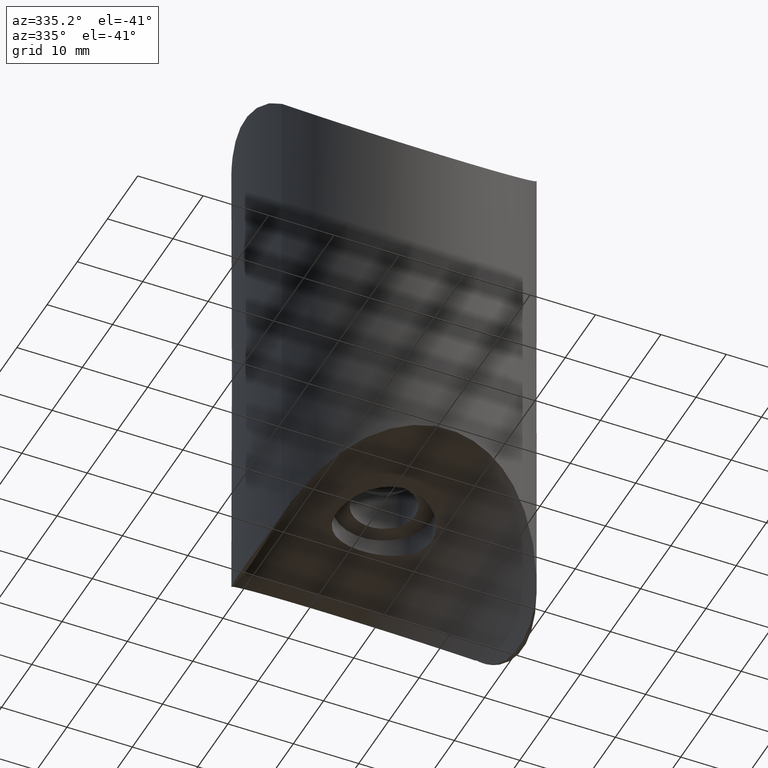
[diagram: clean part render]
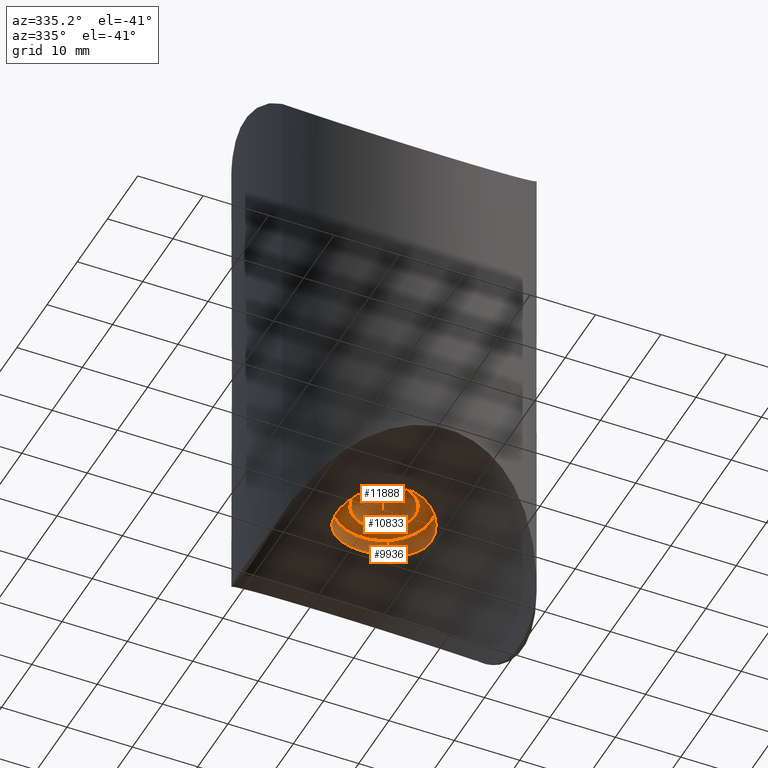
[diagram: same view with one multi-face feature highlighted, each face labeled with its STEP entity id]
A machine part, auxiliary view. The highlighted faces form ONE feature: a stepped (counterbored) hole: 2 coaxial cylindrical walls of radii 4.75 -> 7.25 mm joined by 1 annular planar shoulder face(s). The faces share edges in the B-rep.
Their STEP definitions:
[1] entity #9936 (Cylinder):
#9 = CARTESIAN_POINT ( 'NONE',  ( 6.509851379537828109, 3.226429652034594753, 26.02330857311088153 ) ) ;
#55 = CARTESIAN_POINT ( 'NONE',  ( -6.876303559639469931, 2.345931738775577813, 26.14524508502736211 ) ) ;
#89 = CARTESIAN_POINT ( 'NONE',  ( 4.432367805953239426, 5.756904445230259348, 25.46463419026534325 ) ) ;
#141 = CARTESIAN_POINT ( 'NONE',  ( -7.190882583206959389, -0.9543925950206311182, 26.25678463686046626 ) ) ;
#189 = CARTESIAN_POINT ( 'NONE',  ( 3.005515933870009704, 6.601917067209921441, 25.21297113585722727 ) ) ;
#525 = VERTEX_POINT ( 'NONE', #12753 ) ;
#850 = CARTESIAN_POINT ( 'NONE',  ( 5.750198254161116296, -4.421941696019360712, 25.79413230358338893 ) ) ;
#889 = CARTESIAN_POINT ( 'NONE',  ( -2.343731365980569858, -6.877354188263146817, 25.12524757484231941 ) ) ;
#1028 = CARTESIAN_POINT ( 'NONE',  ( 3.224516823743711846, -6.510582053894632182, 25.24205241274534828 ) ) ;
#1068 = CARTESIAN_POINT ( 'NONE',  ( -3.007011386368386940, 6.601309398131058437, 25.21316529528060357 ) ) ;
#1115 = CARTESIAN_POINT ( 'NONE',  ( -0.2388465963188698415, 7.250001156584477968, 24.99999960446973901 ) ) ;
#1165 = CARTESIAN_POINT ( 'NONE',  ( -7.261670843123230412, -0.002871798025563713531, 26.28247452916088278 ) ) ;
#1210 = CARTESIAN_POINT ( 'NONE',  ( -7.191716234747705272, 0.9480330731187185389, 26.25708554441493803 ) ) ;
#1248 = CARTESIAN_POINT ( 'NONE',  ( 6.783783114446726437, 2.568883994451123254, 26.11444431597557170 ) ) ;
#1957 = CARTESIAN_POINT ( 'NONE',  ( -3.226555368670454449, -6.510024408526104089, 25.24224232055169992 ) ) ;
#1999 = CYLINDRICAL_SURFACE ( 'NONE', #12590, 7.250000000000000000 ) ;
#2093 = CARTESIAN_POINT ( 'NONE',  ( 0.4818734902393436159, -7.249680505290640120, 25.00010926114083887 ) ) ;
#2152 = CARTESIAN_POINT ( 'NONE',  ( -6.285011176621781104, 3.644561984070159077, 25.95121334313757799 ) ) ;
#2201 = CARTESIAN_POINT ( 'NONE',  ( 7.062527813327395876, 1.655145732846079243, 26.21092440739820262 ) ) ;
#2288 = CARTESIAN_POINT ( 'NONE',  ( -6.511739008375249327, -3.222246078574271699, 26.02392867496302031 ) ) ;
#2337 = CARTESIAN_POINT ( 'NONE',  ( -5.759433065516857297, -4.428706587053812704, 25.79549507831384858 ) ) ;
#2761 = CIRCLE ( 'NONE', #3832, 7.250000000000000000 ) ;
#2997 = CARTESIAN_POINT ( 'NONE',  ( 3.640337174190682923, -6.287877510260845071, 25.31099678021422505 ) ) ;
#3038 = CARTESIAN_POINT ( 'NONE',  ( -3.644503179383127733, -6.285018690129441588, 25.31181856569190458 ) ) ;
#3076 = CARTESIAN_POINT ( 'NONE',  ( 7.062438076636141204, -1.655554104716786767, 26.21089259011953132 ) ) ;
#3222 = CARTESIAN_POINT ( 'NONE',  ( -5.462926514089710750, 4.789915247397677156, 25.71304050749420966 ) ) ;
#3314 = CARTESIAN_POINT ( 'NONE',  ( 7.004554471377879565, 1.885653695091795479, 26.19046125019285753 ) ) ;
#3360 = CARTESIAN_POINT ( 'NONE',  ( -3.223449022790398910, 6.498295588379965793, 25.24543072876354799 ) ) ;
#3403 = CARTESIAN_POINT ( 'NONE',  ( 3.841002185440898664, 6.153497826531583392, 25.34989155617804713 ) ) ;
#3832 = AXIS2_PLACEMENT_3D ( 'NONE', #13554, #8377, #4954 ) ;
#4077 = CARTESIAN_POINT ( 'NONE',  ( 7.202236549575331104, -0.9570018828714262904, 26.26065258830743687 ) ) ;
#4308 = CARTESIAN_POINT ( 'NONE',  ( 5.459349115452888590, 4.793624281395480580, 25.71213156078946938 ) ) ;
#4327 = EDGE_LOOP ( 'NONE', ( #9248 ) ) ;
#4363 = CARTESIAN_POINT ( 'NONE',  ( -3.841864781931664030, 6.152863332618352388, 25.35007052466577093 ) ) ;
#4408 = CARTESIAN_POINT ( 'NONE',  ( 6.287238633193511284, 3.640728091337449346, 25.95190742098747805 ) ) ;
#4446 = CARTESIAN_POINT ( 'NONE',  ( -0.4800756467866428845, 7.238085387647865687, 25.00408349533747554 ) ) ;
#4498 = CARTESIAN_POINT ( 'NONE',  ( -7.155043788601265220, -1.193796978232343653, 26.24385170633036068 ) ) ;
#4954 = DIRECTION ( 'NONE',  ( 1.000000000000000000, 0.000000000000000000, 0.000000000000000000 ) ) ;
#5175 = EDGE_CURVE ( 'NONE', #10905, #10905, #2761, .T. ) ;
#5247 = CARTESIAN_POINT ( 'NONE',  ( 4.431842194841512317, -5.757450224349411450, 25.46449216879322108 ) ) ;
#5336 = CARTESIAN_POINT ( 'NONE',  ( -4.785265091308689378, -5.451572531739584448, 25.54627725870549426 ) ) ;
#5390 = CARTESIAN_POINT ( 'NONE',  ( -3.640238106544568364, 6.274323524026134358, 25.31380208191935921 ) ) ;
#5431 = CARTESIAN_POINT ( 'NONE',  ( -7.238519723795993066, 0.4726323275835440096, 26.27402570532289161 ) ) ;
#5472 = CARTESIAN_POINT ( 'NONE',  ( -4.420518731307505611, 5.751258890511357968, 25.46515579548934483 ) ) ;
#5526 = CARTESIAN_POINT ( 'NONE',  ( 0.9512028090831811111, 7.203228716476409055, 25.01613312446788839 ) ) ;
#6043 = FACE_OUTER_BOUND ( 'NONE', #7381, .T. ) ;
#6227 = CARTESIAN_POINT ( 'NONE',  ( -0.4722111775666714140, -7.250316275388796861, 24.99989183980555651 ) ) ;
#6406 = CARTESIAN_POINT ( 'NONE',  ( 5.763426133025938647, 4.423481646274604273, 25.79662915280572832 ) ) ;
#6449 = CARTESIAN_POINT ( 'NONE',  ( 3.636215122921624410, 6.276662310834697500, 25.31309908041830781 ) ) ;
#6494 = CARTESIAN_POINT ( 'NONE',  ( -5.760815841621084843, 4.426872302757072219, 25.79588944834109299 ) ) ;
#6541 = CARTESIAN_POINT ( 'NONE',  ( -7.013546906630645950, -1.897859625115776661, 26.19349642912559872 ) ) ;
#6582 = CARTESIAN_POINT ( 'NONE',  ( 2.345654572570471164, 6.864208478661653068, 25.12891732731159067 ) ) ;
#7260 = CARTESIAN_POINT ( 'NONE',  ( 5.450020823086114241, -4.787026358093287470, 25.71191835642623502 ) ) ;
#7304 = CARTESIAN_POINT ( 'NONE',  ( -1.889748769253172256, -7.015536201140634809, 25.07921617399650316 ) ) ;
#7381 = EDGE_LOOP ( 'NONE', ( #10747 ) ) ;
#7396 = CARTESIAN_POINT ( 'NONE',  ( 7.250000000000000888, -0.4829326223636259408, 26.27821544138167908 ) ) ;
#7437 = CARTESIAN_POINT ( 'NONE',  ( 6.509725557862082290, -3.226624134545719613, 26.02326916184702199 ) ) ;
#7479 = CARTESIAN_POINT ( 'NONE',  ( 4.794854175872560909, 5.458268951572289751, 25.54651072145647817 ) ) ;
#7505 = CARTESIAN_POINT ( 'NONE',  ( 0.000000000000000000, 0.000000000000000000, 22.49999999999990408 ) ) ;
#7535 = CARTESIAN_POINT ( 'NONE',  ( 6.865358533641773953, 2.342290632023545260, 26.14227638720970148 ) ) ;
#7620 = CARTESIAN_POINT ( 'NONE',  ( -6.284210845800443757, -3.645984821129516718, 25.95096090228459218 ) ) ;
#7670 = CARTESIAN_POINT ( 'NONE',  ( -4.419892896670904570, -5.751778146353806243, 25.46501574993795813 ) ) ;
#7920 = B_SPLINE_CURVE_WITH_KNOTS ( 'NONE', 3,
 ( #9495, #7396, #4077, #3076, #11625, #8472, #9410, #7437, #12673, #11679, #850, #7260, #8343, #10563, #5247, #2997, #1028, #9450, #12764, #12723, #8521, #11541, #2093, #6227, #13708, #7304, #889, #1957, #3038, #10519, #7670, #5336, #10791, #8610, #2337, #7620, #2288, #12946, #6541, #4498, #141, #11772, #1165, #5431, #1210, #8702, #9635, #55, #8647, #2152, #6494, #3222, #10883, #9778, #5472, #11916, #4363, #5390, #3360, #1068, #10750, #12859, #10707, #10837, #4446, #1115, #12990, #5526, #8569, #12910, #6582, #12804, #189, #9817, #6449, #3403, #89, #7479, #4308, #6406, #4408, #9, #1248, #7535, #3314, #2201, #8748, #11815, #9737 ),
 .UNSPECIFIED., .T., .F.,
 ( 4, 2, 2, 2, 2, 2, 2, 2, 2, 2, 2, 2, 2, 2, 2, 2, 2, 2, 2, 2, 2, 1, 2, 2, 2, 2, 2, 2, 2, 2, 2, 2, 2, 2, 2, 2, 2, 2, 2, 2, 2, 2, 2, 2, 4 ),
 ( 0.000000000000000000, 0.001427308038129308050, 0.002140962057193962834, 0.002854616076258617401, 0.004281924114387923933, 0.004995578133452575030, 0.005709232152517226128, 0.007136540190646524853, 0.008563848228775820109, 0.009277502247840470340, 0.009991156266905118835, 0.01141846430503441756, 0.01284577234316371455, 0.01427308038129301328, 0.01570038841942231200, 0.01641404243848696223, 0.01712769645755160899, 0.01855500449568090598, 0.01998231253381020298, 0.02140962057193950344, 0.02212327459100415020, 0.02283692861006879696, 0.02355058262913345413, 0.02426423664819810436, 0.02569154468632739788, 0.02711885272445669834, 0.02854616076258599533, 0.02925981478165064556, 0.02997346880071529232, 0.03068712281977994255, 0.03140077683884458931, 0.03282808487697389671, 0.03354173889603854347, 0.03425539291510319023, 0.03568270095323249763, 0.03639635497229714439, 0.03711000899136179115, 0.03782366301042644485, 0.03853731702949109161, 0.03996462506762039207, 0.04139193310574969253, 0.04281924114387899299, 0.04353289516294363976, 0.04424654918200828652, 0.04567385722013758698 ),
 .UNSPECIFIED. ) ;
#8343 = CARTESIAN_POINT ( 'NONE',  ( 5.292002883686162562, -4.961068277643217783, 25.67041370422147395 ) ) ;
#8377 = DIRECTION ( 'NONE',  ( 0.000000000000000000, 0.000000000000000000, 1.000000000000000000 ) ) ;
#8472 = CARTESIAN_POINT ( 'NONE',  ( 6.864947048405172225, -2.343528998161398036, 26.14213506629824124 ) ) ;
#8521 = CARTESIAN_POINT ( 'NONE',  ( 1.658086648949342878, -7.061898216450464005, 25.06363438643840169 ) ) ;
#8569 = CARTESIAN_POINT ( 'NONE',  ( 1.654782290350956364, 7.062676068814877972, 25.06337429442401188 ) ) ;
#8610 = CARTESIAN_POINT ( 'NONE',  ( -5.461870639133853622, -4.790913465329488474, 25.71278499240138515 ) ) ;
#8647 = CARTESIAN_POINT ( 'NONE',  ( -6.512538062397744021, 3.220837523552795290, 26.02418295756648448 ) ) ;
#8702 = CARTESIAN_POINT ( 'NONE',  ( -7.156177727786754872, 1.187067269414604054, 26.24425862712013924 ) ) ;
#8748 = CARTESIAN_POINT ( 'NONE',  ( 7.202198424912301888, 0.9571122672483709515, 26.26063926573231200 ) ) ;
#9248 = ORIENTED_EDGE ( 'NONE', *, *, #5175, .F. ) ;
#9410 = CARTESIAN_POINT ( 'NONE',  ( 6.783481717695234003, -2.569661129754936546, 26.11434282070438329 ) ) ;
#9450 = CARTESIAN_POINT ( 'NONE',  ( 2.571139155122240894, -6.782876624395622223, 25.15534480208374646 ) ) ;
#9495 = CARTESIAN_POINT ( 'NONE',  ( 7.250000000000000888, 1.897353801849632760E-16, 26.27821544138167553 ) ) ;
#9635 = CARTESIAN_POINT ( 'NONE',  ( -7.015049260418606103, 1.892516147631730039, 26.19402445453758688 ) ) ;
#9656 = DIRECTION ( 'NONE',  ( 1.000000000000000000, 0.000000000000000000, 0.000000000000000000 ) ) ;
#9737 = CARTESIAN_POINT ( 'NONE',  ( 7.250000000000000888, 1.897353801849632760E-16, 26.27821544138167553 ) ) ;
#9778 = CARTESIAN_POINT ( 'NONE',  ( -4.784453945466641045, 5.452244044724628758, 25.54609599899141870 ) ) ;
#9817 = CARTESIAN_POINT ( 'NONE',  ( 3.218975471921132314, 6.500518986633826657, 25.24474081869287545 ) ) ;
#9936 = ADVANCED_FACE ( 'NONE', ( #13391, #6043 ), #1999, .F. ) ;
#10519 = CARTESIAN_POINT ( 'NONE',  ( -4.230815641621752832, -5.892201612857561166, 25.42550046882255899 ) ) ;
#10563 = CARTESIAN_POINT ( 'NONE',  ( 4.794506645124601008, -5.458495940767755350, 25.54644006431640690 ) ) ;
#10707 = CARTESIAN_POINT ( 'NONE',  ( -1.194776294910115721, 7.154817448180724071, 25.03240748984019604 ) ) ;
#10747 = ORIENTED_EDGE ( 'NONE', *, *, #12860, .F. ) ;
#10750 = CARTESIAN_POINT ( 'NONE',  ( -2.346359400707032083, 6.876387900135068953, 25.12556071525166601 ) ) ;
#10791 = CARTESIAN_POINT ( 'NONE',  ( -4.961887728149411814, -5.291291510677449850, 25.58813029866534805 ) ) ;
#10837 = CARTESIAN_POINT ( 'NONE',  ( -0.9587532348326727183, 7.190350821776157808, 25.02033660952184846 ) ) ;
#10883 = CARTESIAN_POINT ( 'NONE',  ( -4.960688375816887152, 5.292462506426904412, 25.58783515313056256 ) ) ;
#10905 = VERTEX_POINT ( 'NONE', #12708 ) ;
#11541 = CARTESIAN_POINT ( 'NONE',  ( 0.9548202249930347607, -7.202739017739379079, 25.01630039204166778 ) ) ;
#11625 = CARTESIAN_POINT ( 'NONE',  ( 7.004391776076592357, -1.886298489068182649, 26.19040381408808571 ) ) ;
#11679 = CARTESIAN_POINT ( 'NONE',  ( 5.892557090182344304, -4.230376132583575810, 25.83491791462298082 ) ) ;
#11772 = CARTESIAN_POINT ( 'NONE',  ( -7.238136233160389565, -0.4785803622761177767, 26.27388614418848078 ) ) ;
#11815 = CARTESIAN_POINT ( 'NONE',  ( 7.250000000000001776, 0.4829326223636228876, 26.27821544138167198 ) ) ;
#11916 = CARTESIAN_POINT ( 'NONE',  ( -4.232005378712577759, 5.891331145596392815, 25.42574635266996097 ) ) ;
#12590 = AXIS2_PLACEMENT_3D ( 'NONE', #7505, #12886, #9656 ) ;
#12673 = CARTESIAN_POINT ( 'NONE',  ( 6.286913508811767137, -3.641491956531560437, 25.95179247060359984 ) ) ;
#12708 = CARTESIAN_POINT ( 'NONE',  ( 7.250000000000000000, 0.000000000000000000, 22.49999999999990408 ) ) ;
#12723 = CARTESIAN_POINT ( 'NONE',  ( 1.892431338739001490, -7.002716058644911534, 25.08339051043923718 ) ) ;
#12753 = CARTESIAN_POINT ( 'NONE',  ( 7.250000000000000000, 0.000000000000000000, 26.27821544138167198 ) ) ;
#12764 = CARTESIAN_POINT ( 'NONE',  ( 2.348359331223857538, -6.863274511579634307, 25.12922162904505541 ) ) ;
#12804 = CARTESIAN_POINT ( 'NONE',  ( 2.568855173014339410, 6.783761352755684371, 25.15506023593355067 ) ) ;
#12859 = CARTESIAN_POINT ( 'NONE',  ( -1.893306789193659245, 7.014520785390474522, 25.07955394206409849 ) ) ;
#12860 = EDGE_CURVE ( 'NONE', #525, #525, #7920, .T. ) ;
#12886 = DIRECTION ( 'NONE',  ( 0.000000000000000000, 0.000000000000000000, 1.000000000000000000 ) ) ;
#12910 = CARTESIAN_POINT ( 'NONE',  ( 1.889166000319870253, 7.003606587722265076, 25.08309510850781976 ) ) ;
#12946 = CARTESIAN_POINT ( 'NONE',  ( -6.874786492142589189, -2.350090507094766856, 26.14472863026707472 ) ) ;
#12990 = CARTESIAN_POINT ( 'NONE',  ( 0.4777985065261775577, 7.249997686576092448, 25.00000079114713714 ) ) ;
#13391 = FACE_OUTER_BOUND ( 'NONE', #4327, .T. ) ;
#13554 = CARTESIAN_POINT ( 'NONE',  ( 0.000000000000000000, 0.000000000000000000, 22.49999999999990408 ) ) ;
#13708 = CARTESIAN_POINT ( 'NONE',  ( -0.9566369692030787242, -7.202342973613697019, 25.01643312506559269 ) ) ;
[2] entity #11888 (Cylinder):
#196 = EDGE_CURVE ( 'NONE', #9417, #9417, #9848, .T. ) ;
#421 = DIRECTION ( 'NONE',  ( 0.000000000000000000, 0.000000000000000000, -1.000000000000000000 ) ) ;
#827 = FACE_OUTER_BOUND ( 'NONE', #9237, .T. ) ;
#836 = CARTESIAN_POINT ( 'NONE',  ( 4.750000000000000000, 0.000000000000000000, 22.49999999999990408 ) ) ;
#964 = CARTESIAN_POINT ( 'NONE',  ( -4.750000000000000000, 0.000000000000000000, 16.37499999999990408 ) ) ;
#1032 = EDGE_CURVE ( 'NONE', #5237, #5237, #11998, .T. ) ;
#4357 = CYLINDRICAL_SURFACE ( 'NONE', #9604, 4.750000000000000000 ) ;
#4587 = DIRECTION ( 'NONE',  ( -1.000000000000000000, 0.000000000000000000, 0.000000000000000000 ) ) ;
#4670 = DIRECTION ( 'NONE',  ( 0.000000000000000000, 0.000000000000000000, -1.000000000000000000 ) ) ;
#4690 = AXIS2_PLACEMENT_3D ( 'NONE', #5504, #5549, #9846 ) ;
#5237 = VERTEX_POINT ( 'NONE', #964 ) ;
#5504 = CARTESIAN_POINT ( 'NONE',  ( 0.000000000000000000, 0.000000000000000000, 22.49999999999990408 ) ) ;
#5549 = DIRECTION ( 'NONE',  ( -0.000000000000000000, -0.000000000000000000, -1.000000000000000000 ) ) ;
#6821 = CARTESIAN_POINT ( 'NONE',  ( 0.000000000000000000, 0.000000000000000000, 40.99999999999980815 ) ) ;
#7192 = FACE_OUTER_BOUND ( 'NONE', #7496, .T. ) ;
#7496 = EDGE_LOOP ( 'NONE', ( #13697 ) ) ;
#9237 = EDGE_LOOP ( 'NONE', ( #9404 ) ) ;
#9404 = ORIENTED_EDGE ( 'NONE', *, *, #1032, .T. ) ;
#9417 = VERTEX_POINT ( 'NONE', #836 ) ;
#9604 = AXIS2_PLACEMENT_3D ( 'NONE', #6821, #421, #4587 ) ;
#9846 = DIRECTION ( 'NONE',  ( 1.000000000000000000, 0.000000000000000000, 0.000000000000000000 ) ) ;
#9848 = CIRCLE ( 'NONE', #4690, 4.750000000000000000 ) ;
#11060 = CARTESIAN_POINT ( 'NONE',  ( 0.000000000000000000, 0.000000000000000000, 16.37499999999990408 ) ) ;
#11888 = ADVANCED_FACE ( 'NONE', ( #827, #7192 ), #4357, .F. ) ;
#11998 = CIRCLE ( 'NONE', #12815, 4.750000000000000000 ) ;
#12178 = DIRECTION ( 'NONE',  ( -1.000000000000000000, 0.000000000000000000, 0.000000000000000000 ) ) ;
#12815 = AXIS2_PLACEMENT_3D ( 'NONE', #11060, #4670, #12178 ) ;
#13697 = ORIENTED_EDGE ( 'NONE', *, *, #196, .F. ) ;
[3] entity #10833 (Plane):
#196 = EDGE_CURVE ( 'NONE', #9417, #9417, #9848, .T. ) ;
#767 = AXIS2_PLACEMENT_3D ( 'NONE', #7754, #3489, #5380 ) ;
#836 = CARTESIAN_POINT ( 'NONE',  ( 4.750000000000000000, 0.000000000000000000, 22.49999999999990408 ) ) ;
#2761 = CIRCLE ( 'NONE', #3832, 7.250000000000000000 ) ;
#3489 = DIRECTION ( 'NONE',  ( 0.000000000000000000, 0.000000000000000000, 1.000000000000000000 ) ) ;
#3504 = FACE_OUTER_BOUND ( 'NONE', #6725, .T. ) ;
#3832 = AXIS2_PLACEMENT_3D ( 'NONE', #13554, #8377, #4954 ) ;
#4690 = AXIS2_PLACEMENT_3D ( 'NONE', #5504, #5549, #9846 ) ;
#4954 = DIRECTION ( 'NONE',  ( 1.000000000000000000, 0.000000000000000000, 0.000000000000000000 ) ) ;
#5027 = FACE_BOUND ( 'NONE', #9680, .T. ) ;
#5175 = EDGE_CURVE ( 'NONE', #10905, #10905, #2761, .T. ) ;
#5310 = ORIENTED_EDGE ( 'NONE', *, *, #5175, .T. ) ;
#5380 = DIRECTION ( 'NONE',  ( 1.000000000000000000, 0.000000000000000000, 0.000000000000000000 ) ) ;
#5504 = CARTESIAN_POINT ( 'NONE',  ( 0.000000000000000000, 0.000000000000000000, 22.49999999999990408 ) ) ;
#5549 = DIRECTION ( 'NONE',  ( -0.000000000000000000, -0.000000000000000000, -1.000000000000000000 ) ) ;
#6725 = EDGE_LOOP ( 'NONE', ( #5310 ) ) ;
#7754 = CARTESIAN_POINT ( 'NONE',  ( 0.000000000000000000, 0.000000000000000000, 22.49999999999990408 ) ) ;
#8377 = DIRECTION ( 'NONE',  ( 0.000000000000000000, 0.000000000000000000, 1.000000000000000000 ) ) ;
#9417 = VERTEX_POINT ( 'NONE', #836 ) ;
#9680 = EDGE_LOOP ( 'NONE', ( #10769 ) ) ;
#9846 = DIRECTION ( 'NONE',  ( 1.000000000000000000, 0.000000000000000000, 0.000000000000000000 ) ) ;
#9848 = CIRCLE ( 'NONE', #4690, 4.750000000000000000 ) ;
#10769 = ORIENTED_EDGE ( 'NONE', *, *, #196, .T. ) ;
#10833 = ADVANCED_FACE ( 'NONE', ( #3504, #5027 ), #11764, .T. ) ;
#10905 = VERTEX_POINT ( 'NONE', #12708 ) ;
#11764 = PLANE ( 'NONE',  #767 ) ;
#12708 = CARTESIAN_POINT ( 'NONE',  ( 7.250000000000000000, 0.000000000000000000, 22.49999999999990408 ) ) ;
#13554 = CARTESIAN_POINT ( 'NONE',  ( 0.000000000000000000, 0.000000000000000000, 22.49999999999990408 ) ) ;